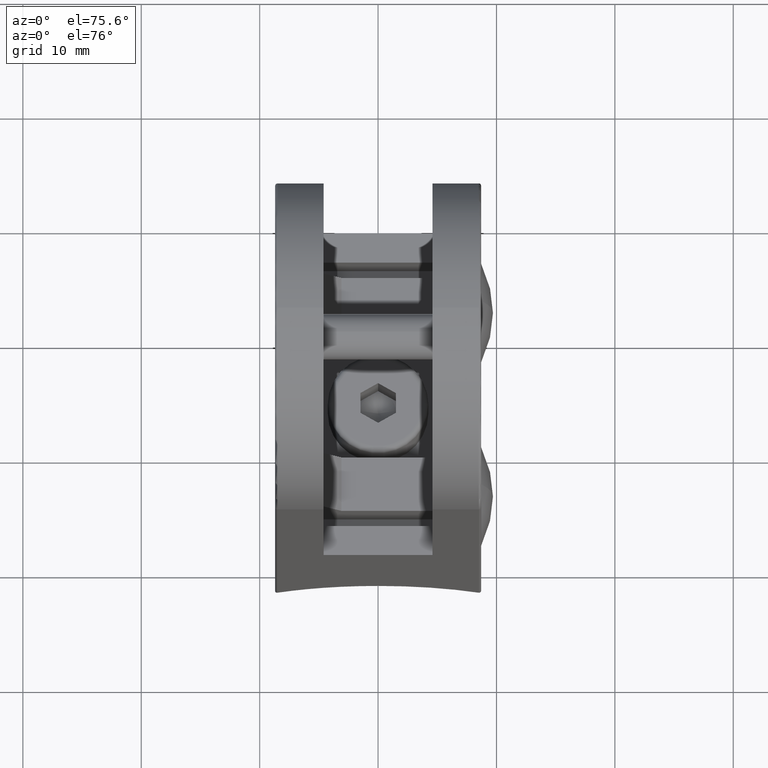
[diagram: clean part render]
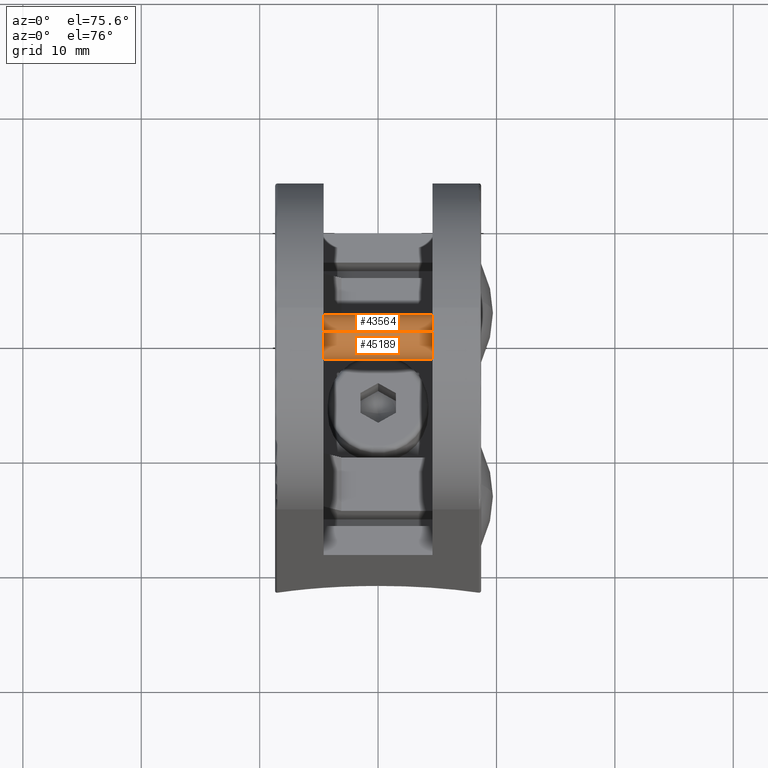
[diagram: same view with one multi-face feature highlighted, each face labeled with its STEP entity id]
A machine part, auxiliary view. The highlighted faces form ONE feature: a constant-radius fillet chain: 2 tangent blend faces with common blend radius 1.925 mm. The faces share edges in the B-rep.
Their STEP definitions:
[1] entity #43564 (Cylinder):
#1233 = LINE ( 'NONE', #43882, #43331 ) ;
#2188 = ORIENTED_EDGE ( 'NONE', *, *, #48275, .F. ) ;
#7991 = CARTESIAN_POINT ( 'NONE',  ( -1.925000000000000000, 0.0000000000000000000, 6.500000000000000000 ) ) ;
#11278 = CARTESIAN_POINT ( 'NONE',  ( 0.0000000000000000000, 0.0000000000000000000, 6.500000000000000000 ) ) ;
#11480 = DIRECTION ( 'NONE',  ( -0.0000000000000000000, -0.0000000000000000000, -1.000000000000000000 ) ) ;
#11739 = CIRCLE ( 'NONE', #40303, 1.925000000000000000 ) ;
#12809 = VECTOR ( 'NONE', #61008, 1000.000000000000000 ) ;
#13467 = VERTEX_POINT ( 'NONE', #7991 ) ;
#16171 = CARTESIAN_POINT ( 'NONE',  ( 1.925000000000000000, 2.357445088358654300E-016, 6.500000000000000000 ) ) ;
#16465 = DIRECTION ( 'NONE',  ( -1.000000000000000000, 0.0000000000000000000, 0.0000000000000000000 ) ) ;
#17038 = DIRECTION ( 'NONE',  ( 1.000000000000000000, 0.0000000000000000000, 0.0000000000000000000 ) ) ;
#19593 = DIRECTION ( 'NONE',  ( 1.000000000000000000, 0.0000000000000000000, 0.0000000000000000000 ) ) ;
#19875 = EDGE_CURVE ( 'NONE', #37765, #28994, #11739, .T. ) ;
#20227 = ORIENTED_EDGE ( 'NONE', *, *, #32781, .F. ) ;
#25206 = CIRCLE ( 'NONE', #39496, 1.925000000000000000 ) ;
#25637 = LINE ( 'NONE', #42203, #12809 ) ;
#25675 = CARTESIAN_POINT ( 'NONE',  ( 1.925000000000000000, 2.357445088358654300E-016, -6.500000000000000000 ) ) ;
#26488 = FACE_OUTER_BOUND ( 'NONE', #33644, .T. ) ;
#27199 = CARTESIAN_POINT ( 'NONE',  ( 0.0000000000000000000, 0.0000000000000000000, -6.500000000000000000 ) ) ;
#28994 = VERTEX_POINT ( 'NONE', #48861 ) ;
#32781 = EDGE_CURVE ( 'NONE', #13467, #28994, #1233, .T. ) ;
#33644 = EDGE_LOOP ( 'NONE', ( #2188, #56917, #40922, #20227 ) ) ;
#34241 = DIRECTION ( 'NONE',  ( -0.0000000000000000000, -0.0000000000000000000, -1.000000000000000000 ) ) ;
#36043 = DIRECTION ( 'NONE',  ( 0.0000000000000000000, 0.0000000000000000000, 1.000000000000000000 ) ) ;
#37765 = VERTEX_POINT ( 'NONE', #25675 ) ;
#39496 = AXIS2_PLACEMENT_3D ( 'NONE', #51434, #46976, #19593 ) ;
#40303 = AXIS2_PLACEMENT_3D ( 'NONE', #27199, #36043, #17038 ) ;
#40599 = AXIS2_PLACEMENT_3D ( 'NONE', #11278, #11480, #16465 ) ;
#40922 = ORIENTED_EDGE ( 'NONE', *, *, #19875, .T. ) ;
#42203 = CARTESIAN_POINT ( 'NONE',  ( 1.925000000000000000, 2.357445088358654300E-016, 6.500000000000000000 ) ) ;
#43331 = VECTOR ( 'NONE', #34241, 1000.000000000000000 ) ;
#43564 = ADVANCED_FACE ( 'NONE', ( #26488 ), #61182, .T. ) ;
#43882 = CARTESIAN_POINT ( 'NONE',  ( -1.925000000000000000, 0.0000000000000000000, 6.500000000000000000 ) ) ;
#44665 = EDGE_CURVE ( 'NONE', #61558, #37765, #25637, .T. ) ;
#46976 = DIRECTION ( 'NONE',  ( 0.0000000000000000000, 0.0000000000000000000, 1.000000000000000000 ) ) ;
#48275 = EDGE_CURVE ( 'NONE', #61558, #13467, #25206, .T. ) ;
#48861 = CARTESIAN_POINT ( 'NONE',  ( -1.925000000000000000, 0.0000000000000000000, -6.500000000000000000 ) ) ;
#51434 = CARTESIAN_POINT ( 'NONE',  ( 0.0000000000000000000, 0.0000000000000000000, 6.500000000000000000 ) ) ;
#56917 = ORIENTED_EDGE ( 'NONE', *, *, #44665, .T. ) ;
#61008 = DIRECTION ( 'NONE',  ( -0.0000000000000000000, -0.0000000000000000000, -1.000000000000000000 ) ) ;
#61182 = CYLINDRICAL_SURFACE ( 'NONE', #40599, 1.925000000000000000 ) ;
#61558 = VERTEX_POINT ( 'NONE', #16171 ) ;
[2] entity #45189 (Cylinder):
#1233 = LINE ( 'NONE', #43882, #43331 ) ;
#5331 = ORIENTED_EDGE ( 'NONE', *, *, #44665, .F. ) ;
#7991 = CARTESIAN_POINT ( 'NONE',  ( -1.925000000000000000, 0.0000000000000000000, 6.500000000000000000 ) ) ;
#9373 = ORIENTED_EDGE ( 'NONE', *, *, #32781, .T. ) ;
#10064 = AXIS2_PLACEMENT_3D ( 'NONE', #13450, #18713, #47132 ) ;
#12670 = DIRECTION ( 'NONE',  ( 1.000000000000000000, 0.0000000000000000000, 0.0000000000000000000 ) ) ;
#12809 = VECTOR ( 'NONE', #61008, 1000.000000000000000 ) ;
#13039 = CARTESIAN_POINT ( 'NONE',  ( 0.0000000000000000000, 0.0000000000000000000, 6.500000000000000000 ) ) ;
#13450 = CARTESIAN_POINT ( 'NONE',  ( 0.0000000000000000000, 0.0000000000000000000, 6.500000000000000000 ) ) ;
#13467 = VERTEX_POINT ( 'NONE', #7991 ) ;
#16171 = CARTESIAN_POINT ( 'NONE',  ( 1.925000000000000000, 2.357445088358654300E-016, 6.500000000000000000 ) ) ;
#17467 = EDGE_CURVE ( 'NONE', #28994, #37765, #26918, .T. ) ;
#18713 = DIRECTION ( 'NONE',  ( -0.0000000000000000000, -0.0000000000000000000, -1.000000000000000000 ) ) ;
#25637 = LINE ( 'NONE', #42203, #12809 ) ;
#25675 = CARTESIAN_POINT ( 'NONE',  ( 1.925000000000000000, 2.357445088358654300E-016, -6.500000000000000000 ) ) ;
#26587 = CIRCLE ( 'NONE', #27081, 1.925000000000000000 ) ;
#26918 = CIRCLE ( 'NONE', #35106, 1.925000000000000000 ) ;
#27081 = AXIS2_PLACEMENT_3D ( 'NONE', #13039, #41221, #41649 ) ;
#28994 = VERTEX_POINT ( 'NONE', #48861 ) ;
#32781 = EDGE_CURVE ( 'NONE', #13467, #28994, #1233, .T. ) ;
#34241 = DIRECTION ( 'NONE',  ( -0.0000000000000000000, -0.0000000000000000000, -1.000000000000000000 ) ) ;
#35106 = AXIS2_PLACEMENT_3D ( 'NONE', #46975, #46753, #12670 ) ;
#37765 = VERTEX_POINT ( 'NONE', #25675 ) ;
#38659 = ORIENTED_EDGE ( 'NONE', *, *, #17467, .T. ) ;
#41221 = DIRECTION ( 'NONE',  ( 0.0000000000000000000, 0.0000000000000000000, 1.000000000000000000 ) ) ;
#41649 = DIRECTION ( 'NONE',  ( 1.000000000000000000, 0.0000000000000000000, 0.0000000000000000000 ) ) ;
#42203 = CARTESIAN_POINT ( 'NONE',  ( 1.925000000000000000, 2.357445088358654300E-016, 6.500000000000000000 ) ) ;
#43331 = VECTOR ( 'NONE', #34241, 1000.000000000000000 ) ;
#43882 = CARTESIAN_POINT ( 'NONE',  ( -1.925000000000000000, 0.0000000000000000000, 6.500000000000000000 ) ) ;
#44665 = EDGE_CURVE ( 'NONE', #61558, #37765, #25637, .T. ) ;
#45189 = ADVANCED_FACE ( 'NONE', ( #48204 ), #52771, .T. ) ;
#46753 = DIRECTION ( 'NONE',  ( 0.0000000000000000000, 0.0000000000000000000, 1.000000000000000000 ) ) ;
#46975 = CARTESIAN_POINT ( 'NONE',  ( 0.0000000000000000000, 0.0000000000000000000, -6.500000000000000000 ) ) ;
#47132 = DIRECTION ( 'NONE',  ( -1.000000000000000000, 0.0000000000000000000, 0.0000000000000000000 ) ) ;
#48204 = FACE_OUTER_BOUND ( 'NONE', #62319, .T. ) ;
#48861 = CARTESIAN_POINT ( 'NONE',  ( -1.925000000000000000, 0.0000000000000000000, -6.500000000000000000 ) ) ;
#49349 = EDGE_CURVE ( 'NONE', #13467, #61558, #26587, .T. ) ;
#52771 = CYLINDRICAL_SURFACE ( 'NONE', #10064, 1.925000000000000000 ) ;
#60642 = ORIENTED_EDGE ( 'NONE', *, *, #49349, .F. ) ;
#61008 = DIRECTION ( 'NONE',  ( -0.0000000000000000000, -0.0000000000000000000, -1.000000000000000000 ) ) ;
#61558 = VERTEX_POINT ( 'NONE', #16171 ) ;
#62319 = EDGE_LOOP ( 'NONE', ( #5331, #60642, #9373, #38659 ) ) ;